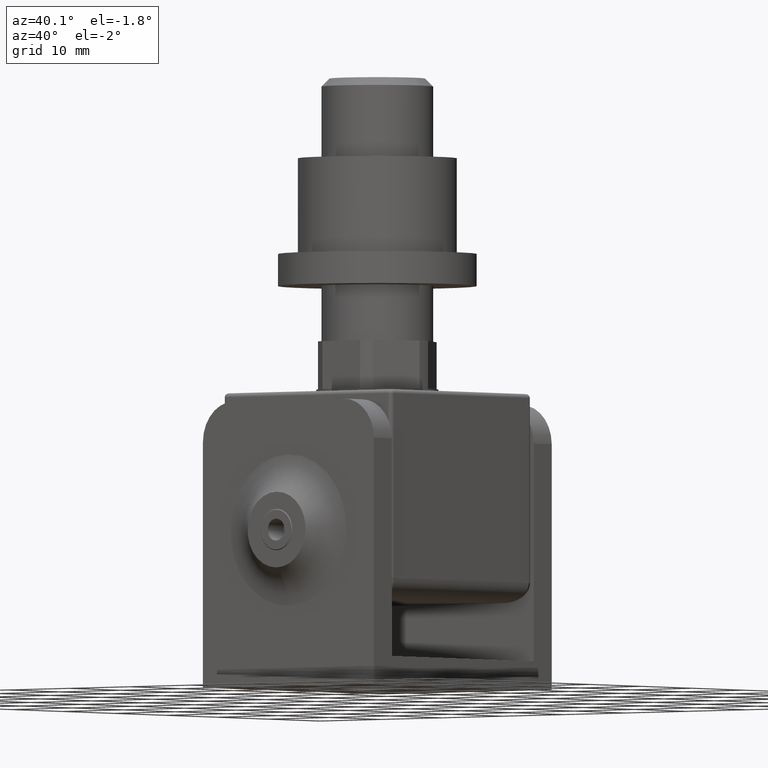
[diagram: clean part render]
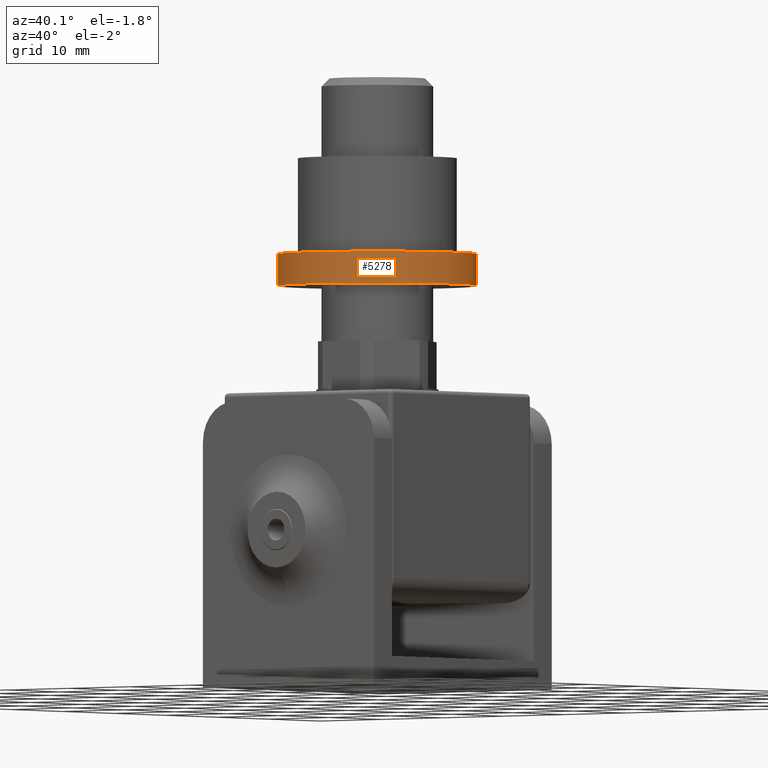
[diagram: same view with one face highlighted and labeled with its STEP entity id]
A machine part, auxiliary view. The second image highlights one B-rep face of the part: STEP entity #5278.
In plain terms, the highlighted cylindrical surface (bore or boss wall) has radius 12.5 mm, axis along (0, 0, -1).
Its self-contained STEP definition (entity closure, byte-faithful):
#352 = CYLINDRICAL_SURFACE ( 'NONE', #6035, 12.50000000000000355 ) ;
#833 = DIRECTION ( 'NONE',  ( -0.000000000000000000, 2.755455298081544285E-16, -1.000000000000000000 ) ) ;
#1216 = ORIENTED_EDGE ( 'NONE', *, *, #8896, .T. ) ;
#2738 = EDGE_LOOP ( 'NONE', ( #11324 ) ) ;
#3595 = EDGE_LOOP ( 'NONE', ( #1216 ) ) ;
#3657 = CARTESIAN_POINT ( 'NONE',  ( 0.000000000000000000, 3.520859547548640243E-15, -8.000000000000007105 ) ) ;
#3963 = DIRECTION ( 'NONE',  ( 0.000000000000000000, 1.000000000000000000, 2.775557561562890858E-16 ) ) ;
#5104 = DIRECTION ( 'NONE',  ( -0.000000000000000000, 2.755455298081544285E-16, -1.000000000000000000 ) ) ;
#5278 = ADVANCED_FACE ( 'NONE', ( #8349, #8714 ), #352, .T. ) ;
#5565 = DIRECTION ( 'NONE',  ( 0.000000000000000000, 1.000000000000000000, 2.775557561562890365E-16 ) ) ;
#6035 = AXIS2_PLACEMENT_3D ( 'NONE', #3657, #5104, #14302 ) ;
#6091 = AXIS2_PLACEMENT_3D ( 'NONE', #14702, #833, #5565 ) ;
#6439 = CIRCLE ( 'NONE', #6091, 12.50000000000000355 ) ;
#7293 = CARTESIAN_POINT ( 'NONE',  ( 0.000000000000000000, 12.50000000000000533, -4.000000000000000000 ) ) ;
#7516 = AXIS2_PLACEMENT_3D ( 'NONE', #14355, #10875, #3963 ) ;
#8326 = VERTEX_POINT ( 'NONE', #13085 ) ;
#8349 = FACE_OUTER_BOUND ( 'NONE', #3595, .T. ) ;
#8714 = FACE_OUTER_BOUND ( 'NONE', #2738, .T. ) ;
#8896 = EDGE_CURVE ( 'NONE', #12985, #12985, #6439, .T. ) ;
#10825 = EDGE_CURVE ( 'NONE', #8326, #8326, #14117, .T. ) ;
#10875 = DIRECTION ( 'NONE',  ( -0.000000000000000000, 2.755455298081544285E-16, -1.000000000000000000 ) ) ;
#11324 = ORIENTED_EDGE ( 'NONE', *, *, #10825, .F. ) ;
#12985 = VERTEX_POINT ( 'NONE', #7293 ) ;
#13085 = CARTESIAN_POINT ( 'NONE',  ( 0.000000000000000000, 12.50000000000000533, -8.000000000000003553 ) ) ;
#14117 = CIRCLE ( 'NONE', #7516, 12.50000000000000178 ) ;
#14302 = DIRECTION ( 'NONE',  ( 0.000000000000000000, 1.000000000000000000, 2.775557561562890365E-16 ) ) ;
#14355 = CARTESIAN_POINT ( 'NONE',  ( 0.000000000000000000, 3.520859547548641031E-15, -8.000000000000007105 ) ) ;
#14702 = CARTESIAN_POINT ( 'NONE',  ( 0.000000000000000000, 2.418677428316022726E-15, -4.000000000000003553 ) ) ;